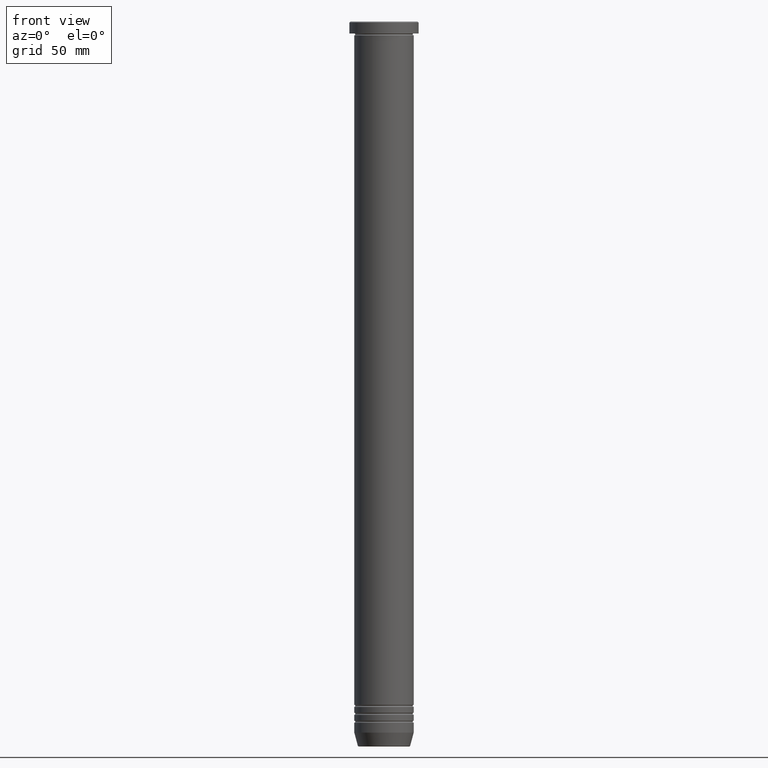
[diagram: clean part render]
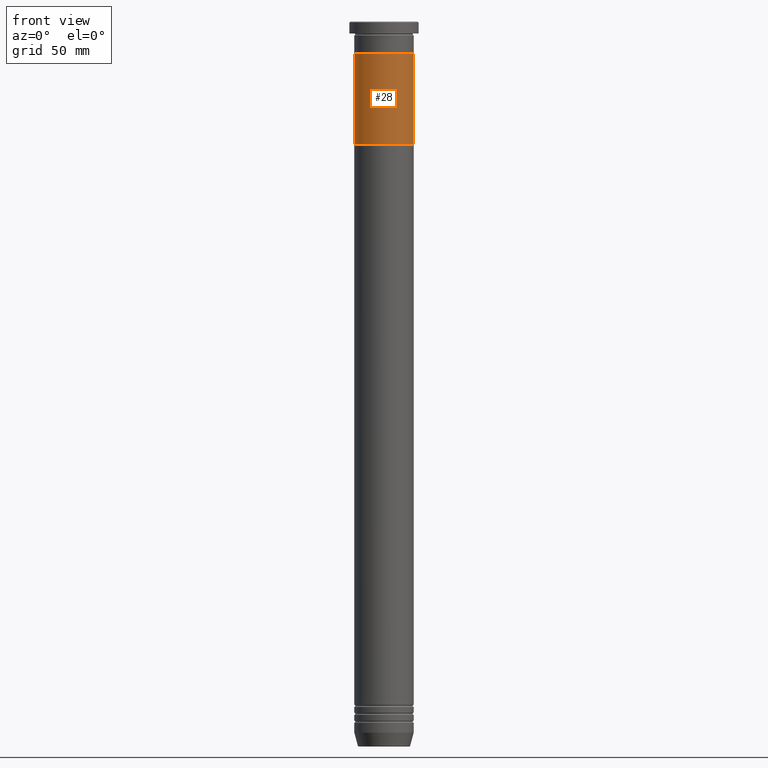
[diagram: same view with one face highlighted and labeled with its STEP entity id]
A machine part, front view. The second image highlights one B-rep face of the part: STEP entity #28.
In plain terms, the highlighted cylindrical surface (edge-blend (fillet) strip) has radius 15 mm, axis along (-0, -0, 1).
Its self-contained STEP definition (entity closure, byte-faithful):
#26 = DIRECTION ( 'NONE',  ( 0.000000000000000000, 0.000000000000000000, -1.000000000000000000 ) ) ;
#28 = ADVANCED_FACE ( 'NONE', ( #870 ), #696, .T. ) ;
#77 = CARTESIAN_POINT ( 'NONE',  ( 15.00000000000000000, 0.000000000000000000, -62.00000000000000000 ) ) ;
#115 = AXIS2_PLACEMENT_3D ( 'NONE', #1093, #26, #377 ) ;
#123 = CARTESIAN_POINT ( 'NONE',  ( 0.000000000000000000, 0.000000000000000000, -62.00000000000000000 ) ) ;
#165 = CARTESIAN_POINT ( 'NONE',  ( 0.000000000000000000, 0.000000000000000000, -62.00000000000000000 ) ) ;
#182 = EDGE_LOOP ( 'NONE', ( #364, #831, #711, #417 ) ) ;
#226 = AXIS2_PLACEMENT_3D ( 'NONE', #123, #744, #301 ) ;
#253 = EDGE_CURVE ( 'NONE', #534, #922, #497, .T. ) ;
#301 = DIRECTION ( 'NONE',  ( -1.000000000000000000, 0.000000000000000000, 0.000000000000000000 ) ) ;
#305 = CARTESIAN_POINT ( 'NONE',  ( -15.00000000000000000, 1.836970198721029589E-15, -16.00000000000000000 ) ) ;
#310 = CARTESIAN_POINT ( 'NONE',  ( -15.00000000000000000, 1.836970198721029589E-15, -62.00000000000000000 ) ) ;
#333 = VERTEX_POINT ( 'NONE', #310 ) ;
#359 = CARTESIAN_POINT ( 'NONE',  ( 15.00000000000000000, 0.000000000000000000, -16.00000000000000000 ) ) ;
#364 = ORIENTED_EDGE ( 'NONE', *, *, #802, .F. ) ;
#377 = DIRECTION ( 'NONE',  ( -1.000000000000000000, 0.000000000000000000, 0.000000000000000000 ) ) ;
#392 = VECTOR ( 'NONE', #394, 1000.000000000000000 ) ;
#394 = DIRECTION ( 'NONE',  ( -0.000000000000000000, -0.000000000000000000, 1.000000000000000000 ) ) ;
#417 = ORIENTED_EDGE ( 'NONE', *, *, #253, .T. ) ;
#497 = CIRCLE ( 'NONE', #115, 15.00000000000000000 ) ;
#534 = VERTEX_POINT ( 'NONE', #359 ) ;
#591 = DIRECTION ( 'NONE',  ( 1.000000000000000000, 0.000000000000000000, 0.000000000000000000 ) ) ;
#622 = EDGE_CURVE ( 'NONE', #1006, #333, #947, .T. ) ;
#643 = LINE ( 'NONE', #77, #392 ) ;
#671 = AXIS2_PLACEMENT_3D ( 'NONE', #165, #959, #591 ) ;
#676 = LINE ( 'NONE', #682, #836 ) ;
#682 = CARTESIAN_POINT ( 'NONE',  ( -15.00000000000000000, 1.836970198721029589E-15, -62.00000000000000000 ) ) ;
#696 = CYLINDRICAL_SURFACE ( 'NONE', #671, 15.00000000000000000 ) ;
#711 = ORIENTED_EDGE ( 'NONE', *, *, #973, .T. ) ;
#744 = DIRECTION ( 'NONE',  ( 0.000000000000000000, 0.000000000000000000, -1.000000000000000000 ) ) ;
#802 = EDGE_CURVE ( 'NONE', #333, #922, #676, .T. ) ;
#831 = ORIENTED_EDGE ( 'NONE', *, *, #622, .F. ) ;
#836 = VECTOR ( 'NONE', #1048, 1000.000000000000000 ) ;
#870 = FACE_OUTER_BOUND ( 'NONE', #182, .T. ) ;
#922 = VERTEX_POINT ( 'NONE', #305 ) ;
#947 = CIRCLE ( 'NONE', #226, 15.00000000000000000 ) ;
#959 = DIRECTION ( 'NONE',  ( -0.000000000000000000, -0.000000000000000000, 1.000000000000000000 ) ) ;
#973 = EDGE_CURVE ( 'NONE', #1006, #534, #643, .T. ) ;
#1006 = VERTEX_POINT ( 'NONE', #1028 ) ;
#1028 = CARTESIAN_POINT ( 'NONE',  ( 15.00000000000000000, 0.000000000000000000, -62.00000000000000000 ) ) ;
#1048 = DIRECTION ( 'NONE',  ( -0.000000000000000000, -0.000000000000000000, 1.000000000000000000 ) ) ;
#1093 = CARTESIAN_POINT ( 'NONE',  ( 0.000000000000000000, 0.000000000000000000, -16.00000000000000000 ) ) ;